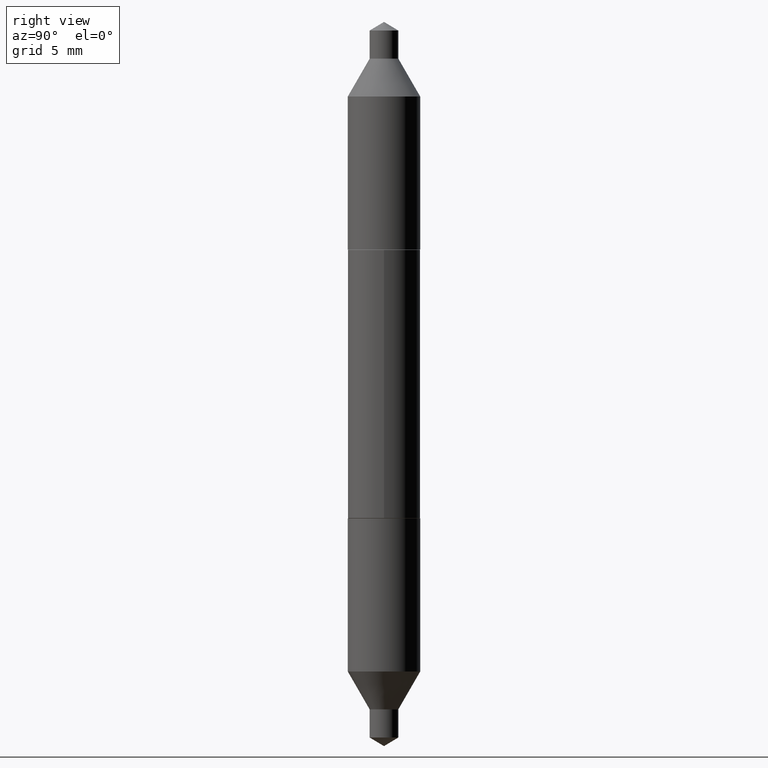
[diagram: clean part render]
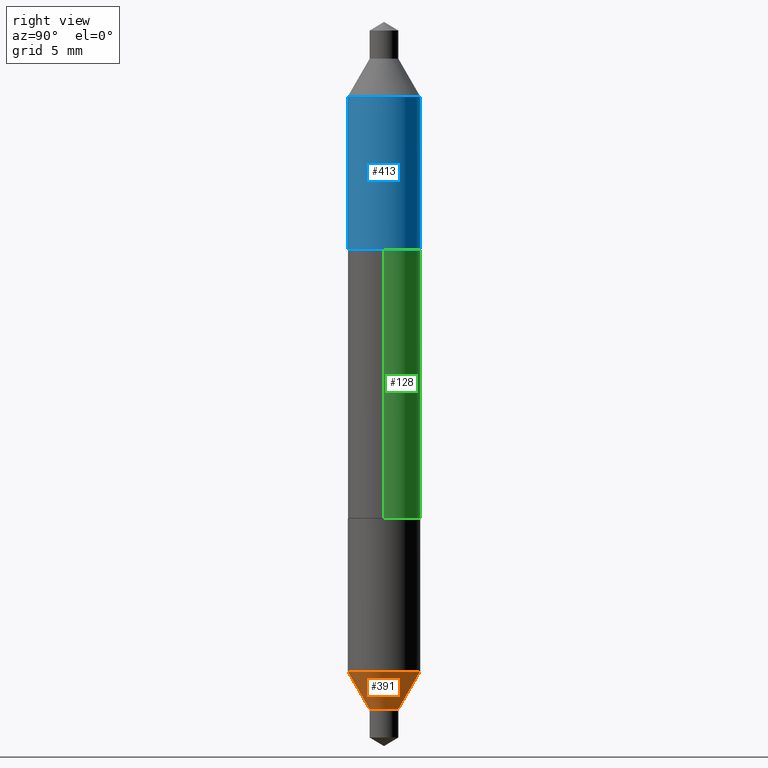
[diagram: same view with three faces highlighted in distinct colors, each labeled with its STEP entity id]
A machine part, right view with three faces highlighted in distinct colors.
Their STEP definitions:

[orange] entity #391 — the highlighted conical surface has half-angle 30 deg.
#13 = EDGE_CURVE ( 'NONE', #179, #676, #324, .T. ) ;
#28 = VERTEX_POINT ( 'NONE', #544 ) ;
#42 = FACE_OUTER_BOUND ( 'NONE', #258, .T. ) ;
#51 = AXIS2_PLACEMENT_3D ( 'NONE', #540, #327, #378 ) ;
#66 = CARTESIAN_POINT ( 'NONE',  ( 1.747935129969982313E-16, 0.02459999999999805745, -0.5570000000000000506 ) ) ;
#133 = DIRECTION ( 'NONE',  ( -3.491481338843115211E-15, -0.4999999999999913403, 0.8660254037844434816 ) ) ;
#139 = DIRECTION ( 'NONE',  ( -6.982962677686265922E-15, -1.000000000000000000, 2.776268286244171659E-15 ) ) ;
#179 = VERTEX_POINT ( 'NONE', #553 ) ;
#216 = VECTOR ( 'NONE', #133, 39.37007874015748854 ) ;
#245 = CARTESIAN_POINT ( 'NONE',  ( -4.329436860165363856E-16, -0.06200000000000171346, -0.4922212997969227510 ) ) ;
#258 = EDGE_LOOP ( 'NONE', ( #667, #331, #355, #662 ) ) ;
#270 = CIRCLE ( 'NONE', #51, 0.06200000000000000649 ) ;
#297 = VERTEX_POINT ( 'NONE', #245 ) ;
#324 = LINE ( 'NONE', #66, #702 ) ;
#327 = DIRECTION ( 'NONE',  ( -2.473974349157782882E-29, 3.450659778871567200E-15, 1.000000000000000000 ) ) ;
#331 = ORIENTED_EDGE ( 'NONE', *, *, #13, .T. ) ;
#350 = AXIS2_PLACEMENT_3D ( 'NONE', #683, #686, #139 ) ;
#355 = ORIENTED_EDGE ( 'NONE', *, *, #531, .F. ) ;
#377 = CIRCLE ( 'NONE', #350, 0.02459999999999998646 ) ;
#378 = DIRECTION ( 'NONE',  ( -6.982962677686265922E-15, -1.000000000000000000, 3.304654831045479413E-15 ) ) ;
#388 = AXIS2_PLACEMENT_3D ( 'NONE', #631, #528, #578 ) ;
#391 = ADVANCED_FACE ( 'NONE', ( #42 ), #692, .T. ) ;
#428 = DIRECTION ( 'NONE',  ( 3.552713678800440187E-15, 0.4999999999999974465, 0.8660254037844400399 ) ) ;
#475 = EDGE_CURVE ( 'NONE', #28, #179, #377, .T. ) ;
#476 = LINE ( 'NONE', #701, #216 ) ;
#528 = DIRECTION ( 'NONE',  ( -2.473974349157782882E-29, 3.450659778871567200E-15, 1.000000000000000000 ) ) ;
#531 = EDGE_CURVE ( 'NONE', #297, #676, #270, .T. ) ;
#540 = CARTESIAN_POINT ( 'NONE',  ( 1.211186594922981775E-29, -1.707877200306588786E-15, -0.4922212997969229731 ) ) ;
#544 = CARTESIAN_POINT ( 'NONE',  ( -1.717808818710683337E-16, -0.02460000000000191547, -0.5569999999999999396 ) ) ;
#553 = CARTESIAN_POINT ( 'NONE',  ( 1.747935129969994146E-16, 0.02459999999999805398, -0.5570000000000000506 ) ) ;
#558 = CARTESIAN_POINT ( 'NONE',  ( 4.405364961712710854E-16, 0.06199999999999830647, -0.4922212997969231396 ) ) ;
#578 = DIRECTION ( 'NONE',  ( -6.982962677686265922E-15, -1.000000000000000000, 2.776268286244171659E-15 ) ) ;
#631 = CARTESIAN_POINT ( 'NONE',  ( 1.371447437597176321E-29, -1.931406455624925954E-15, -0.5569999999999999396 ) ) ;
#640 = EDGE_CURVE ( 'NONE', #28, #297, #476, .T. ) ;
#662 = ORIENTED_EDGE ( 'NONE', *, *, #640, .F. ) ;
#667 = ORIENTED_EDGE ( 'NONE', *, *, #475, .T. ) ;
#676 = VERTEX_POINT ( 'NONE', #558 ) ;
#683 = CARTESIAN_POINT ( 'NONE',  ( 1.371447437597176321E-29, -1.931406455624925954E-15, -0.5569999999999999396 ) ) ;
#686 = DIRECTION ( 'NONE',  ( -2.473974349157782882E-29, 3.450659778871567200E-15, 1.000000000000000000 ) ) ;
#692 = CONICAL_SURFACE ( 'NONE', #388, 0.02459999999999998646, 0.5235987755982924874 ) ;
#701 = CARTESIAN_POINT ( 'NONE',  ( -1.717808818710683337E-16, -0.02460000000000191547, -0.5569999999999999396 ) ) ;
#702 = VECTOR ( 'NONE', #428, 39.37007874015748854 ) ;

[blue] entity #413 — the highlighted cylindrical surface (edge-blend (fillet) strip) has radius 1.5748 mm, axis along (0, -0, -1).
#1 = DIRECTION ( 'NONE',  ( 2.416963263212490591E-29, -3.532302898814723965E-15, -1.000000000000000000 ) ) ;
#7 = LINE ( 'NONE', #643, #514 ) ;
#46 = DIRECTION ( 'NONE',  ( -6.982962677686265922E-15, -1.000000000000000000, 3.304654831045479808E-15 ) ) ;
#52 = ORIENTED_EDGE ( 'NONE', *, *, #615, .T. ) ;
#57 = EDGE_CURVE ( 'NONE', #142, #697, #329, .T. ) ;
#75 = ORIENTED_EDGE ( 'NONE', *, *, #143, .F. ) ;
#85 = EDGE_LOOP ( 'NONE', ( #93, #75, #52, #684 ) ) ;
#93 = ORIENTED_EDGE ( 'NONE', *, *, #57, .F. ) ;
#114 = CIRCLE ( 'NONE', #183, 0.06199999999999999956 ) ;
#122 = VECTOR ( 'NONE', #1, 39.37007874015748143 ) ;
#142 = VERTEX_POINT ( 'NONE', #283 ) ;
#143 = EDGE_CURVE ( 'NONE', #619, #142, #608, .T. ) ;
#162 = CARTESIAN_POINT ( 'NONE',  ( 4.253508758618292960E-16, 0.06200000000000079753, 0.2299999999999997324 ) ) ;
#183 = AXIS2_PLACEMENT_3D ( 'NONE', #426, #652, #647 ) ;
#283 = CARTESIAN_POINT ( 'NONE',  ( 4.253508758618293946E-16, 0.06200000000000174122, 0.4922212997969227510 ) ) ;
#314 = CYLINDRICAL_SURFACE ( 'NONE', #479, 0.06199999999999999956 ) ;
#329 = LINE ( 'NONE', #162, #122 ) ;
#362 = DIRECTION ( 'NONE',  ( 2.416963263212490311E-29, -3.532302898814723965E-15, -1.000000000000000000 ) ) ;
#375 = CARTESIAN_POINT ( 'NONE',  ( -4.329436860165540857E-16, -0.06199999999999919464, 0.2300000000000001488 ) ) ;
#385 = CARTESIAN_POINT ( 'NONE',  ( 4.253508758618261406E-16, 0.06200000000000079753, 0.2299999999999997324 ) ) ;
#413 = ADVANCED_FACE ( 'NONE', ( #688 ), #314, .T. ) ;
#426 = CARTESIAN_POINT ( 'NONE',  ( -5.624578254225812687E-30, 8.030407079339232947E-16, 0.2299999999999999267 ) ) ;
#430 = CARTESIAN_POINT ( 'NONE',  ( -1.196237073863572951E-29, 1.729285765337559218E-15, 0.4922212997969229731 ) ) ;
#479 = AXIS2_PLACEMENT_3D ( 'NONE', #523, #362, #46 ) ;
#483 = CARTESIAN_POINT ( 'NONE',  ( -4.329436860165604459E-16, -0.06199999999999827177, 0.4922212997969231396 ) ) ;
#492 = DIRECTION ( 'NONE',  ( -6.982962677686265922E-15, -1.000000000000000000, 3.304654831045479413E-15 ) ) ;
#514 = VECTOR ( 'NONE', #698, 39.37007874015748143 ) ;
#519 = EDGE_CURVE ( 'NONE', #541, #697, #114, .T. ) ;
#523 = CARTESIAN_POINT ( 'NONE',  ( -5.624578254225812687E-30, 8.030407079339232947E-16, 0.2299999999999999267 ) ) ;
#535 = DIRECTION ( 'NONE',  ( -2.416963263212490311E-29, 3.532302898814723965E-15, 1.000000000000000000 ) ) ;
#541 = VERTEX_POINT ( 'NONE', #375 ) ;
#608 = CIRCLE ( 'NONE', #669, 0.06200000000000000649 ) ;
#615 = EDGE_CURVE ( 'NONE', #619, #541, #7, .T. ) ;
#619 = VERTEX_POINT ( 'NONE', #483 ) ;
#643 = CARTESIAN_POINT ( 'NONE',  ( -4.329436860165540857E-16, -0.06199999999999919464, 0.2300000000000001488 ) ) ;
#647 = DIRECTION ( 'NONE',  ( -6.982962677686265922E-15, -1.000000000000000000, 3.304654831045479808E-15 ) ) ;
#652 = DIRECTION ( 'NONE',  ( -2.416963263212490311E-29, 3.532302898814723965E-15, 1.000000000000000000 ) ) ;
#669 = AXIS2_PLACEMENT_3D ( 'NONE', #430, #535, #492 ) ;
#684 = ORIENTED_EDGE ( 'NONE', *, *, #519, .T. ) ;
#688 = FACE_OUTER_BOUND ( 'NONE', #85, .T. ) ;
#697 = VERTEX_POINT ( 'NONE', #385 ) ;
#698 = DIRECTION ( 'NONE',  ( 2.416963263212490591E-29, -3.532302898814723965E-15, -1.000000000000000000 ) ) ;

[green] entity #128 — the highlighted cylindrical surface (edge-blend (fillet) strip) has radius 1.5748 mm, axis along (-0, 0, 1).
#6 = FACE_OUTER_BOUND ( 'NONE', #15, .T. ) ;
#15 = EDGE_LOOP ( 'NONE', ( #522, #408, #438, #450 ) ) ;
#22 = CARTESIAN_POINT ( 'NONE',  ( 0.06200000000000002037, -1.234238653281050355E-15, -0.2294999999999999263 ) ) ;
#45 = EDGE_CURVE ( 'NONE', #172, #130, #259, .T. ) ;
#81 = EDGE_CURVE ( 'NONE', #130, #155, #231, .T. ) ;
#83 = CARTESIAN_POINT ( 'NONE',  ( -5.612350910194886774E-30, 8.012949672645016925E-16, 0.2294999999999999263 ) ) ;
#108 = CARTESIAN_POINT ( 'NONE',  ( -0.06200000000000003425, 4.405364961712622107E-16, 0.2294999999999999263 ) ) ;
#118 = DIRECTION ( 'NONE',  ( -2.445468806185136597E-29, 3.491481338843145583E-15, 1.000000000000000000 ) ) ;
#120 = CARTESIAN_POINT ( 'NONE',  ( -0.06200000000000002037, -3.607584710932394325E-16, -0.2294999999999999263 ) ) ;
#128 = ADVANCED_FACE ( 'NONE', ( #6 ), #371, .T. ) ;
#130 = VERTEX_POINT ( 'NONE', #120 ) ;
#155 = VERTEX_POINT ( 'NONE', #108 ) ;
#159 = CARTESIAN_POINT ( 'NONE',  ( 0.06200000000000002037, 3.683512812479530302E-16, 0.2294999999999999263 ) ) ;
#169 = CARTESIAN_POINT ( 'NONE',  ( 0.000000000000000000, 0.000000000000000000, 0.000000000000000000 ) ) ;
#172 = VERTEX_POINT ( 'NONE', #22 ) ;
#181 = AXIS2_PLACEMENT_3D ( 'NONE', #539, #118, #486 ) ;
#192 = CIRCLE ( 'NONE', #433, 0.06200000000000002037 ) ;
#227 = CARTESIAN_POINT ( 'NONE',  ( -0.06200000000000001343, 4.405364961712622107E-16, -3.049739755958042274E-30 ) ) ;
#231 = LINE ( 'NONE', #227, #569 ) ;
#233 = EDGE_CURVE ( 'NONE', #517, #155, #192, .T. ) ;
#257 = CARTESIAN_POINT ( 'NONE',  ( 0.06200000000000001343, -4.329436860165486130E-16, 3.023229600993481018E-30 ) ) ;
#259 = CIRCLE ( 'NONE', #181, 0.06200000000000002037 ) ;
#275 = DIRECTION ( 'NONE',  ( -2.445468806185136597E-29, 3.491481338843145583E-15, 1.000000000000000000 ) ) ;
#294 = DIRECTION ( 'NONE',  ( 1.000000000000000000, -6.982962677686267499E-15, 0.000000000000000000 ) ) ;
#359 = AXIS2_PLACEMENT_3D ( 'NONE', #169, #275, #533 ) ;
#366 = DIRECTION ( 'NONE',  ( -2.445468806185136877E-29, 3.491481338843145188E-15, 1.000000000000000000 ) ) ;
#371 = CYLINDRICAL_SURFACE ( 'NONE', #359, 0.06200000000000001343 ) ;
#401 = DIRECTION ( 'NONE',  ( -2.445468806185136597E-29, 3.491481338843145583E-15, 1.000000000000000000 ) ) ;
#402 = VECTOR ( 'NONE', #366, 39.37007874015748143 ) ;
#408 = ORIENTED_EDGE ( 'NONE', *, *, #81, .T. ) ;
#432 = DIRECTION ( 'NONE',  ( -2.445468806185136877E-29, 3.491481338843145188E-15, 1.000000000000000000 ) ) ;
#433 = AXIS2_PLACEMENT_3D ( 'NONE', #83, #401, #294 ) ;
#438 = ORIENTED_EDGE ( 'NONE', *, *, #233, .F. ) ;
#448 = EDGE_CURVE ( 'NONE', #172, #517, #520, .T. ) ;
#450 = ORIENTED_EDGE ( 'NONE', *, *, #448, .F. ) ;
#486 = DIRECTION ( 'NONE',  ( 1.000000000000000000, -6.982962677686265922E-15, 0.000000000000000000 ) ) ;
#517 = VERTEX_POINT ( 'NONE', #159 ) ;
#520 = LINE ( 'NONE', #257, #402 ) ;
#522 = ORIENTED_EDGE ( 'NONE', *, *, #45, .T. ) ;
#533 = DIRECTION ( 'NONE',  ( 1.000000000000000000, -6.982962677686266711E-15, 4.876176775795935793E-29 ) ) ;
#539 = CARTESIAN_POINT ( 'NONE',  ( 5.612350910194886774E-30, -8.012949672645016925E-16, -0.2294999999999999263 ) ) ;
#569 = VECTOR ( 'NONE', #432, 39.37007874015748143 ) ;